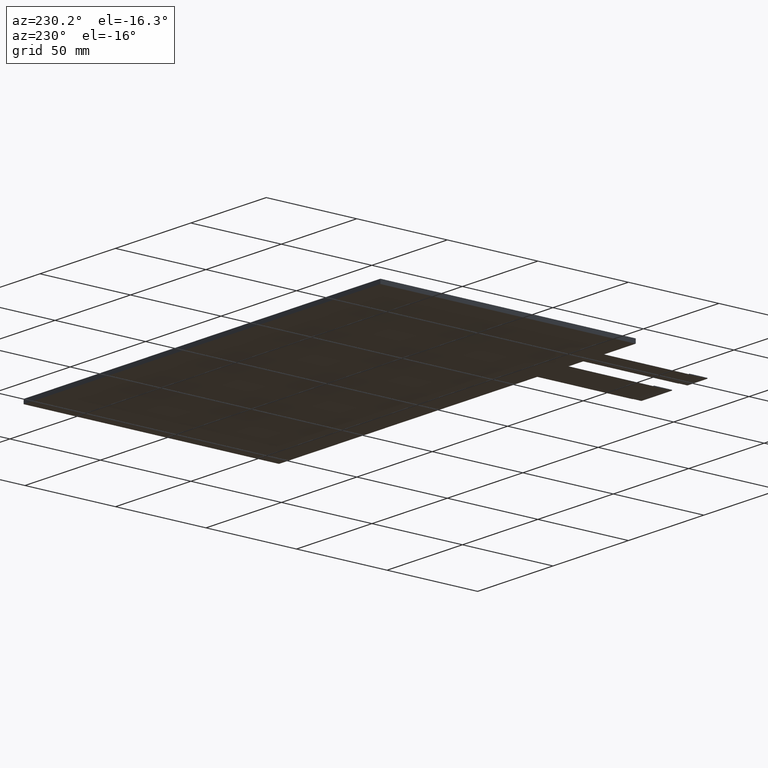
[diagram: clean part render]
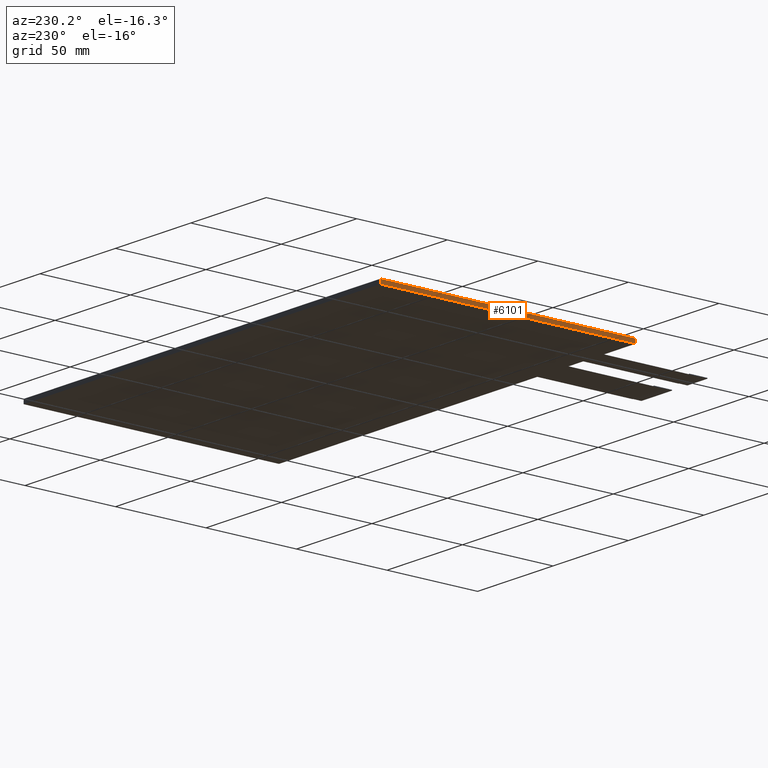
[diagram: same view with one face highlighted and labeled with its STEP entity id]
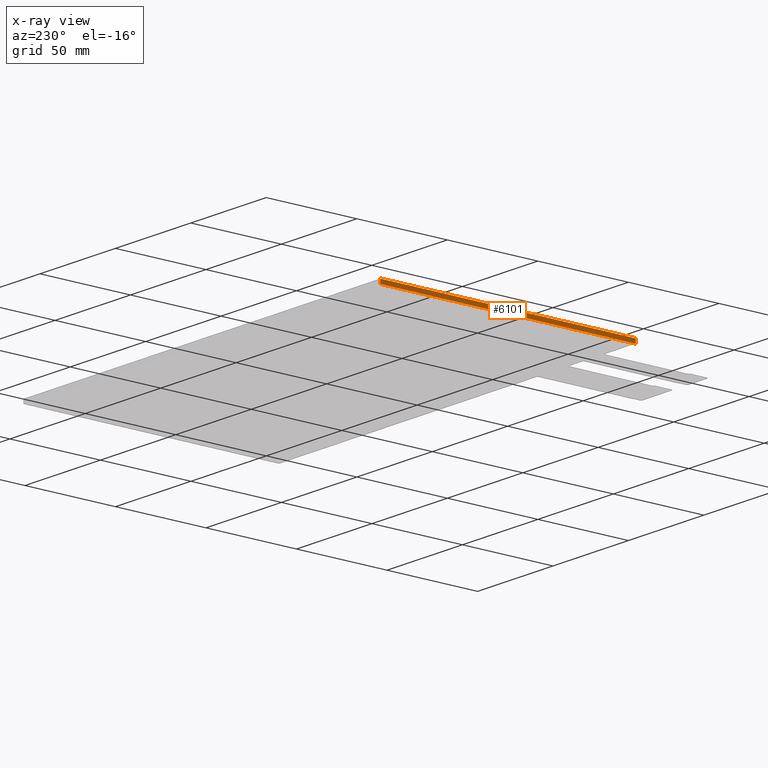
[diagram: x-ray of the same camera — body ghosted, the highlighted face saturated]
A machine part, auxiliary view. The second image highlights one B-rep face of the part: STEP entity #6101.
The next image is the same camera in x-ray: the body ghosted, the highlighted face saturated — about 0% of this face is hidden behind the body in this view.
In plain terms, the highlighted planar face has unit normal (-1, -0, 0).
Its self-contained STEP definition (entity closure, byte-faithful):
#331=PLANE('',#6421);
#623=FACE_OUTER_BOUND('',#915,.T.);
#915=EDGE_LOOP('',(#5782,#5783,#5784,#5785));
#1769=LINE('',#9599,#2625);
#1770=LINE('',#9602,#2626);
#1771=LINE('',#9604,#2627);
#1772=LINE('',#9605,#2628);
#2625=VECTOR('',#7865,10.);
#2626=VECTOR('',#7868,10.);
#2627=VECTOR('',#7869,10.);
#2628=VECTOR('',#7870,10.);
#3211=VERTEX_POINT('',#9593);
#3213=VERTEX_POINT('',#9597);
#3214=VERTEX_POINT('',#9601);
#3215=VERTEX_POINT('',#9603);
#4073=EDGE_CURVE('',#3211,#3213,#1769,.T.);
#4074=EDGE_CURVE('',#3211,#3214,#1770,.T.);
#4075=EDGE_CURVE('',#3215,#3213,#1771,.T.);
#4076=EDGE_CURVE('',#3214,#3215,#1772,.T.);
#5782=ORIENTED_EDGE('',*,*,#4074,.F.);
#5783=ORIENTED_EDGE('',*,*,#4073,.T.);
#5784=ORIENTED_EDGE('',*,*,#4075,.F.);
#5785=ORIENTED_EDGE('',*,*,#4076,.F.);
#6101=ADVANCED_FACE('',(#623),#331,.T.);
#6421=AXIS2_PLACEMENT_3D('',#9600,#7866,#7867);
#7865=DIRECTION('',(0.,0.,-1.));
#7866=DIRECTION('center_axis',(-1.,-1.25982754567394E-16,0.));
#7867=DIRECTION('ref_axis',(-1.25982754567394E-16,1.,0.));
#7868=DIRECTION('',(1.25982754567394E-16,-1.,0.));
#7869=DIRECTION('',(-1.25982754567394E-16,1.,0.));
#7870=DIRECTION('',(0.,0.,-1.));
#9593=CARTESIAN_POINT('',(-118.36,68.92,0.));
#9597=CARTESIAN_POINT('',(-118.36,68.92,-2.35));
#9599=CARTESIAN_POINT('',(-118.36,68.92,0.));
#9600=CARTESIAN_POINT('Origin',(-118.36,-72.08,0.));
#9601=CARTESIAN_POINT('',(-118.36,-72.08,0.));
#9602=CARTESIAN_POINT('',(-118.36,68.9200000000001,0.));
#9603=CARTESIAN_POINT('',(-118.36,-72.08,-2.35));
#9604=CARTESIAN_POINT('',(-118.36,68.9200000000001,-2.35));
#9605=CARTESIAN_POINT('',(-118.36,-72.08,0.));